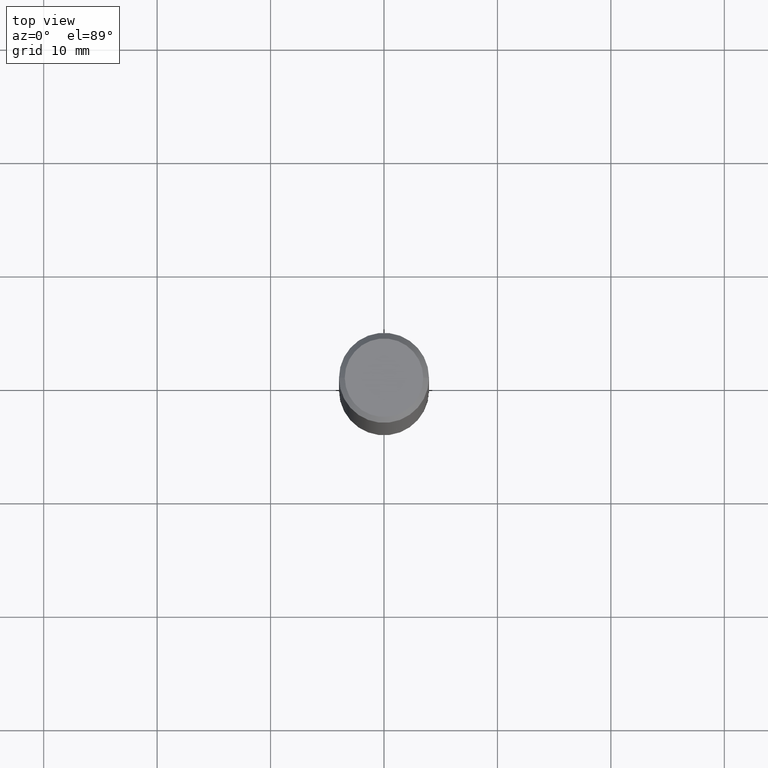
[diagram: clean part render]
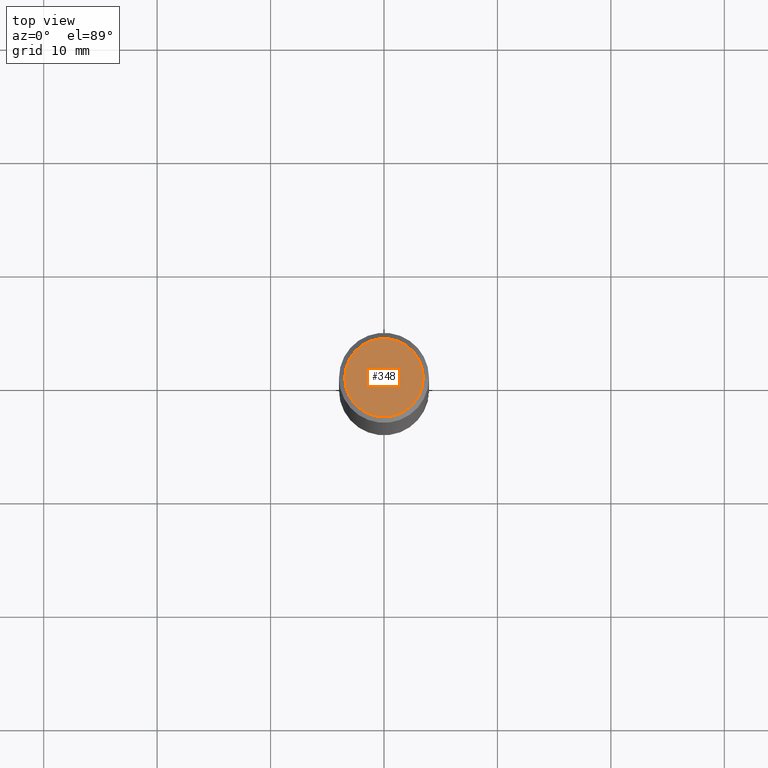
[diagram: same view with one face highlighted and labeled with its STEP entity id]
A machine part, top view. The second image highlights one B-rep face of the part: STEP entity #348.
In plain terms, the highlighted planar face has unit normal (0, -0, -1).
Its self-contained STEP definition (entity closure, byte-faithful):
#3 = AXIS2_PLACEMENT_3D ( 'NONE', #284, #254, #226 ) ;
#12 = CARTESIAN_POINT ( 'NONE',  ( 0.000000000000000000, 0.000000000000000000, 0.000000000000000000 ) ) ;
#21 = CIRCLE ( 'NONE', #3, 0.1362499999999998157 ) ;
#29 = VERTEX_POINT ( 'NONE', #214 ) ;
#84 = CARTESIAN_POINT ( 'NONE',  ( 9.514286648347523799E-16, 0.1362499999999998157, -4.757143324173778663E-16 ) ) ;
#105 = DIRECTION ( 'NONE',  ( -2.445468806185136597E-29, 3.491481338843145583E-15, 1.000000000000000000 ) ) ;
#139 = VERTEX_POINT ( 'NONE', #273 ) ;
#168 = AXIS2_PLACEMENT_3D ( 'NONE', #12, #105, #304 ) ;
#196 = FACE_OUTER_BOUND ( 'NONE', #319, .T. ) ;
#212 = EDGE_CURVE ( 'NONE', #139, #29, #322, .T. ) ;
#214 = CARTESIAN_POINT ( 'NONE',  ( -0.1362499999999998157, 9.863434782231836346E-16, -6.775751096333130074E-30 ) ) ;
#217 = AXIS2_PLACEMENT_3D ( 'NONE', #84, #265, #320 ) ;
#225 = ORIENTED_EDGE ( 'NONE', *, *, #212, .T. ) ;
#226 = DIRECTION ( 'NONE',  ( 1.000000000000000000, -6.982962677686266711E-15, 4.876176775795935232E-29 ) ) ;
#254 = DIRECTION ( 'NONE',  ( -2.445468806185136597E-29, 3.491481338843145583E-15, 1.000000000000000000 ) ) ;
#265 = DIRECTION ( 'NONE',  ( 2.438088387897960049E-29, -3.491481338843145188E-15, -1.000000000000000000 ) ) ;
#273 = CARTESIAN_POINT ( 'NONE',  ( 0.1362499999999998157, -1.038262645562516744E-15, 6.957025900226686667E-30 ) ) ;
#282 = ORIENTED_EDGE ( 'NONE', *, *, #342, .T. ) ;
#284 = CARTESIAN_POINT ( 'NONE',  ( 0.000000000000000000, 0.000000000000000000, 0.000000000000000000 ) ) ;
#304 = DIRECTION ( 'NONE',  ( 1.000000000000000000, -6.982962677686266711E-15, 4.876176775795935232E-29 ) ) ;
#315 = PLANE ( 'NONE',  #217 ) ;
#319 = EDGE_LOOP ( 'NONE', ( #282, #225 ) ) ;
#320 = DIRECTION ( 'NONE',  ( -1.000000000000000000, 6.982962677686265922E-15, -4.876176775795935793E-29 ) ) ;
#322 = CIRCLE ( 'NONE', #168, 0.1362499999999998157 ) ;
#342 = EDGE_CURVE ( 'NONE', #29, #139, #21, .T. ) ;
#348 = ADVANCED_FACE ( 'NONE', ( #196 ), #315, .F. ) ;